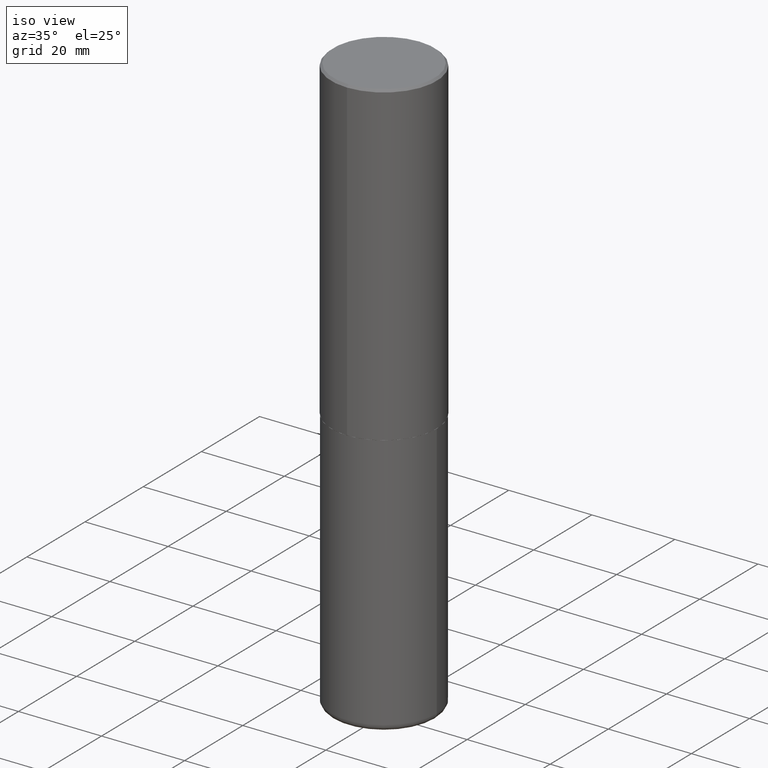
[diagram: clean part render]
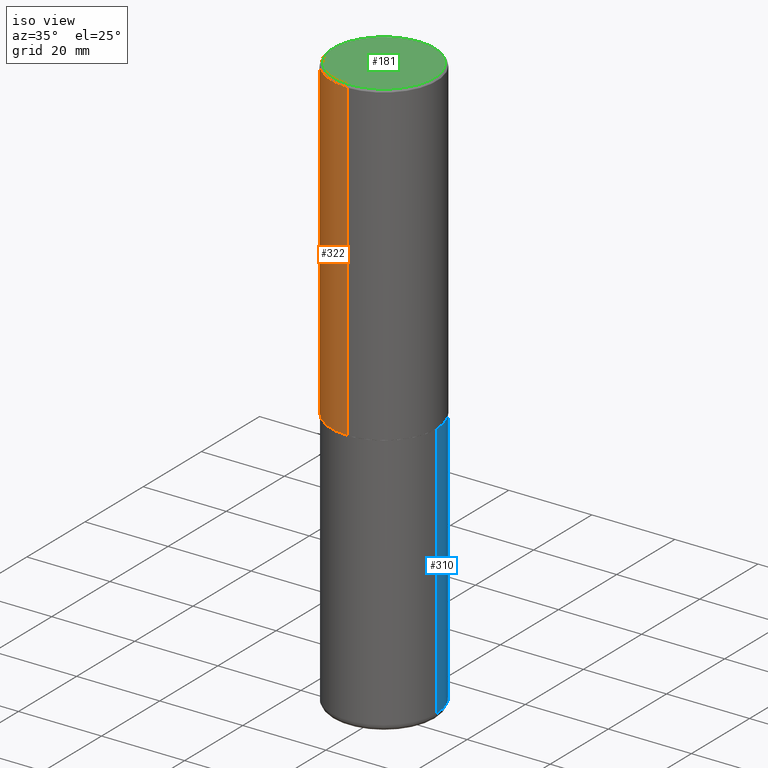
[diagram: same view with three faces highlighted in distinct colors, each labeled with its STEP entity id]
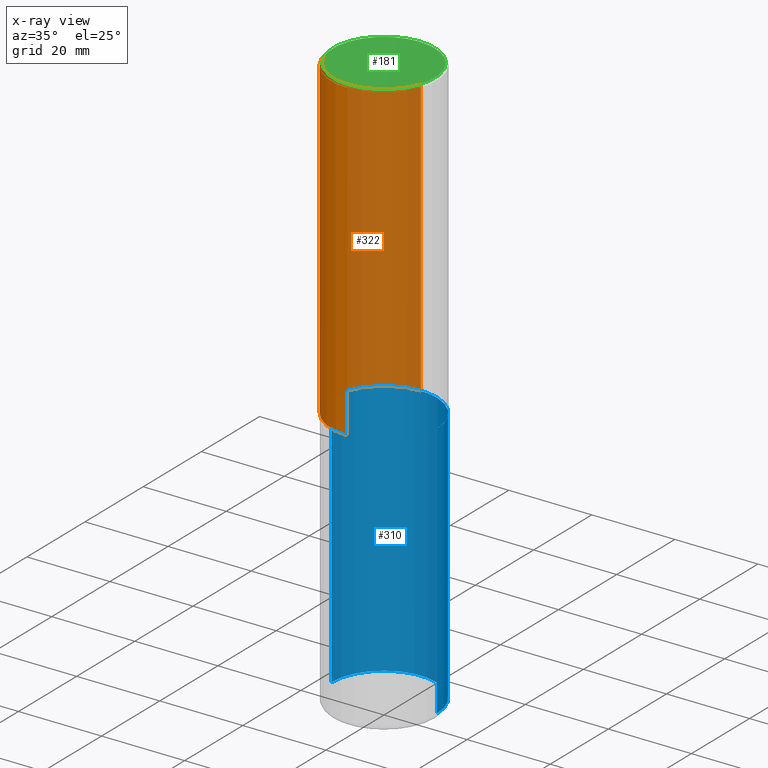
[diagram: x-ray of the same camera — body ghosted, the three highlighted faces saturated]
A machine part, iso view with three faces highlighted in distinct colors.
The next image is the same camera in x-ray (body ghosted, the three faces saturated) — at least one of them is partly hidden behind the body in this view.
Their STEP definitions:

[orange] entity #322 — the highlighted cylindrical surface (partial cylindrical patch) has radius 12.7 mm, axis along (-0, 0, 1).
#3 = VERTEX_POINT ( 'NONE', #256 ) ;
#17 = CIRCLE ( 'NONE', #261, 0.5000000000000003331 ) ;
#40 = EDGE_CURVE ( 'NONE', #222, #226, #84, .T. ) ;
#46 = DIRECTION ( 'NONE',  ( -2.446018302604025097E-29, 3.490694428695902798E-15, 1.000000000000000000 ) ) ;
#58 = DIRECTION ( 'NONE',  ( -2.446018302604025378E-29, 3.490694428695902798E-15, 1.000000000000000000 ) ) ;
#80 = CARTESIAN_POINT ( 'NONE',  ( -3.491481338843061963E-15, -0.5000000000000107692, -2.998999999999998778 ) ) ;
#84 = LINE ( 'NONE', #271, #201 ) ;
#101 = VERTEX_POINT ( 'NONE', #80 ) ;
#110 = DIRECTION ( 'NONE',  ( -2.446018302604025378E-29, 3.490694428695902798E-15, 1.000000000000000000 ) ) ;
#118 = CARTESIAN_POINT ( 'NONE',  ( -3.491481338843133750E-15, -0.5000000000000001110, 1.745347214347951794E-15 ) ) ;
#123 = DIRECTION ( 'NONE',  ( -6.982962677686265922E-15, -1.000000000000000000, 3.490694428695902798E-15 ) ) ;
#132 = ORIENTED_EDGE ( 'NONE', *, *, #317, .F. ) ;
#133 = ORIENTED_EDGE ( 'NONE', *, *, #40, .F. ) ;
#149 = LINE ( 'NONE', #118, #378 ) ;
#156 = EDGE_CURVE ( 'NONE', #222, #101, #17, .T. ) ;
#159 = ORIENTED_EDGE ( 'NONE', *, *, #211, .T. ) ;
#178 = AXIS2_PLACEMENT_3D ( 'NONE', #414, #58, #123 ) ;
#184 = FACE_OUTER_BOUND ( 'NONE', #225, .T. ) ;
#201 = VECTOR ( 'NONE', #46, 39.37007874015748143 ) ;
#205 = DIRECTION ( 'NONE',  ( -6.982962677686265922E-15, -1.000000000000000000, 3.278217592397113496E-15 ) ) ;
#211 = EDGE_CURVE ( 'NONE', #101, #3, #149, .T. ) ;
#217 = CYLINDRICAL_SURFACE ( 'NONE', #178, 0.5000000000000001110 ) ;
#222 = VERTEX_POINT ( 'NONE', #274 ) ;
#225 = EDGE_LOOP ( 'NONE', ( #133, #386, #159, #132 ) ) ;
#226 = VERTEX_POINT ( 'NONE', #315 ) ;
#256 = CARTESIAN_POINT ( 'NONE',  ( -3.430248998885764992E-15, -0.5000000000000001110, -0.01999999999999835937 ) ) ;
#261 = AXIS2_PLACEMENT_3D ( 'NONE', #365, #110, #205 ) ;
#271 = CARTESIAN_POINT ( 'NONE',  ( 3.552713678800501718E-15, 0.5000000000000001110, -1.745347214347951794E-15 ) ) ;
#274 = CARTESIAN_POINT ( 'NONE',  ( 3.552713678800539584E-15, 0.4999999999999898970, -2.999000000000001886 ) ) ;
#309 = AXIS2_PLACEMENT_3D ( 'NONE', #313, #372, #342 ) ;
#313 = CARTESIAN_POINT ( 'NONE',  ( 4.892036605208077240E-31, -6.981388857391842821E-17, -0.02000000000000010797 ) ) ;
#315 = CARTESIAN_POINT ( 'NONE',  ( 3.491481338843133355E-15, 0.4999999999999999445, -0.02000000000000185310 ) ) ;
#317 = EDGE_CURVE ( 'NONE', #226, #3, #370, .T. ) ;
#322 = ADVANCED_FACE ( 'NONE', ( #184 ), #217, .T. ) ;
#342 = DIRECTION ( 'NONE',  ( -6.982962677686265922E-15, -1.000000000000000000, 3.491643216902136408E-15 ) ) ;
#343 = DIRECTION ( 'NONE',  ( -2.446018302604025097E-29, 3.490694428695902798E-15, 1.000000000000000000 ) ) ;
#365 = CARTESIAN_POINT ( 'NONE',  ( 7.335608889509473609E-29, -1.046859259165901344E-14, -2.999000000000000554 ) ) ;
#370 = CIRCLE ( 'NONE', #309, 0.5000000000000000000 ) ;
#372 = DIRECTION ( 'NONE',  ( -2.446018302604025378E-29, 3.490694428695902798E-15, 1.000000000000000000 ) ) ;
#378 = VECTOR ( 'NONE', #343, 39.37007874015748143 ) ;
#386 = ORIENTED_EDGE ( 'NONE', *, *, #156, .T. ) ;
#414 = CARTESIAN_POINT ( 'NONE',  ( 0.000000000000000000, 0.000000000000000000, 0.000000000000000000 ) ) ;

[blue] entity #310 — the highlighted cylindrical surface (partial cylindrical patch) has radius 12.7 mm, axis along (-0, 0, 1).
#1 = DIRECTION ( 'NONE',  ( 1.000000000000000000, -6.982962677686269077E-15, 0.000000000000000000 ) ) ;
#6 = CIRCLE ( 'NONE', #292, 0.5000000000000001110 ) ;
#8 = ORIENTED_EDGE ( 'NONE', *, *, #366, .F. ) ;
#22 = DIRECTION ( 'NONE',  ( -2.445468806185136877E-29, 3.491481338843145188E-15, 1.000000000000000000 ) ) ;
#31 = CARTESIAN_POINT ( 'NONE',  ( -0.5000000000000002220, -1.544094480450621205E-14, -5.439999999999999503 ) ) ;
#61 = LINE ( 'NONE', #348, #68 ) ;
#63 = DIRECTION ( 'NONE',  ( -2.445468806185136877E-29, 3.491481338843145188E-15, 1.000000000000000000 ) ) ;
#68 = VECTOR ( 'NONE', #63, 39.37007874015748143 ) ;
#74 = ORIENTED_EDGE ( 'NONE', *, *, #102, .F. ) ;
#77 = LINE ( 'NONE', #232, #106 ) ;
#102 = EDGE_CURVE ( 'NONE', #417, #199, #233, .T. ) ;
#106 = VECTOR ( 'NONE', #22, 39.37007874015748143 ) ;
#108 = DIRECTION ( 'NONE',  ( 1.000000000000000000, -6.982962677686266711E-15, 0.000000000000000000 ) ) ;
#114 = EDGE_CURVE ( 'NONE', #374, #199, #77, .T. ) ;
#125 = CARTESIAN_POINT ( 'NONE',  ( 0.000000000000000000, 0.000000000000000000, 0.000000000000000000 ) ) ;
#147 = DIRECTION ( 'NONE',  ( -2.445468806185136597E-29, 3.491481338843145583E-15, 1.000000000000000000 ) ) ;
#154 = ORIENTED_EDGE ( 'NONE', *, *, #380, .T. ) ;
#163 = AXIS2_PLACEMENT_3D ( 'NONE', #327, #147, #108 ) ;
#176 = CARTESIAN_POINT ( 'NONE',  ( 0.5000000000000002220, -2.248513982214985265E-14, -5.439999999999999503 ) ) ;
#180 = CYLINDRICAL_SURFACE ( 'NONE', #324, 0.5000000000000000000 ) ;
#190 = CARTESIAN_POINT ( 'NONE',  ( 0.5000000000000000000, -1.396592535537256813E-14, -2.999999999999999556 ) ) ;
#196 = VERTEX_POINT ( 'NONE', #176 ) ;
#199 = VERTEX_POINT ( 'NONE', #303 ) ;
#215 = DIRECTION ( 'NONE',  ( 1.000000000000000000, -6.982962677686266711E-15, 4.876176775795935793E-29 ) ) ;
#232 = CARTESIAN_POINT ( 'NONE',  ( -0.5000000000000000000, 3.552713678800500929E-15, -2.459467545127452891E-29 ) ) ;
#233 = CIRCLE ( 'NONE', #163, 0.5000000000000000000 ) ;
#251 = FACE_OUTER_BOUND ( 'NONE', #325, .T. ) ;
#276 = CARTESIAN_POINT ( 'NONE',  ( 1.330335030564714425E-28, -1.899365848330671298E-14, -5.439999999999999503 ) ) ;
#291 = ORIENTED_EDGE ( 'NONE', *, *, #114, .T. ) ;
#292 = AXIS2_PLACEMENT_3D ( 'NONE', #276, #351, #1 ) ;
#303 = CARTESIAN_POINT ( 'NONE',  ( -0.5000000000000000000, -1.118133757111757295E-14, -2.999999999999999556 ) ) ;
#310 = ADVANCED_FACE ( 'NONE', ( #251 ), #180, .T. ) ;
#324 = AXIS2_PLACEMENT_3D ( 'NONE', #125, #384, #215 ) ;
#325 = EDGE_LOOP ( 'NONE', ( #154, #291, #74, #8 ) ) ;
#327 = CARTESIAN_POINT ( 'NONE',  ( 7.336406418555408669E-29, -1.047444401652943478E-14, -2.999999999999999556 ) ) ;
#348 = CARTESIAN_POINT ( 'NONE',  ( 0.5000000000000000000, -3.491481338843133355E-15, 2.438088387897967896E-29 ) ) ;
#351 = DIRECTION ( 'NONE',  ( -2.445468806185136597E-29, 3.491481338843145583E-15, 1.000000000000000000 ) ) ;
#366 = EDGE_CURVE ( 'NONE', #196, #417, #61, .T. ) ;
#374 = VERTEX_POINT ( 'NONE', #31 ) ;
#380 = EDGE_CURVE ( 'NONE', #196, #374, #6, .T. ) ;
#384 = DIRECTION ( 'NONE',  ( -2.445468806185136597E-29, 3.491481338843145583E-15, 1.000000000000000000 ) ) ;
#417 = VERTEX_POINT ( 'NONE', #190 ) ;

[green] entity #181 — the highlighted planar face has unit normal (0, -0, -1).
#33 = AXIS2_PLACEMENT_3D ( 'NONE', #153, #187, #185 ) ;
#37 = AXIS2_PLACEMENT_3D ( 'NONE', #48, #407, #337 ) ;
#48 = CARTESIAN_POINT ( 'NONE',  ( 3.351822085289408337E-15, 0.4800000000000000933, -1.729078590335627126E-15 ) ) ;
#51 = DIRECTION ( 'NONE',  ( -2.446018302604025378E-29, 3.490694428695902798E-15, 1.000000000000000000 ) ) ;
#54 = DIRECTION ( 'NONE',  ( -6.982962677686265922E-15, -1.000000000000000000, 3.490694428695902798E-15 ) ) ;
#66 = EDGE_LOOP ( 'NONE', ( #288, #323 ) ) ;
#111 = CIRCLE ( 'NONE', #364, 0.4800000000000000933 ) ;
#116 = FACE_OUTER_BOUND ( 'NONE', #66, .T. ) ;
#131 = VERTEX_POINT ( 'NONE', #293 ) ;
#153 = CARTESIAN_POINT ( 'NONE',  ( 2.619453942708643347E-45, -3.738203133764044518E-31, -1.070905291231867826E-16 ) ) ;
#164 = VERTEX_POINT ( 'NONE', #207 ) ;
#174 = CARTESIAN_POINT ( 'NONE',  ( 2.619453942708643347E-45, -3.738203133764044518E-31, -1.070905291231867826E-16 ) ) ;
#181 = ADVANCED_FACE ( 'NONE', ( #116 ), #238, .F. ) ;
#185 = DIRECTION ( 'NONE',  ( -6.982962677686265922E-15, -1.000000000000000000, 3.490694428695902798E-15 ) ) ;
#187 = DIRECTION ( 'NONE',  ( -2.446018302604025378E-29, 3.490694428695902798E-15, 1.000000000000000000 ) ) ;
#193 = EDGE_CURVE ( 'NONE', #164, #131, #111, .T. ) ;
#207 = CARTESIAN_POINT ( 'NONE',  ( -3.361644018908050055E-15, -0.4800000000000000933, 1.568442796650846842E-15 ) ) ;
#214 = CIRCLE ( 'NONE', #33, 0.4800000000000000933 ) ;
#238 = PLANE ( 'NONE',  #37 ) ;
#283 = EDGE_CURVE ( 'NONE', #131, #164, #214, .T. ) ;
#288 = ORIENTED_EDGE ( 'NONE', *, *, #283, .T. ) ;
#293 = CARTESIAN_POINT ( 'NONE',  ( 3.421651712066271240E-15, 0.4800000000000000933, -1.782623854897220357E-15 ) ) ;
#323 = ORIENTED_EDGE ( 'NONE', *, *, #193, .T. ) ;
#337 = DIRECTION ( 'NONE',  ( 6.982962677686265922E-15, 1.000000000000000000, -3.490694428695902798E-15 ) ) ;
#364 = AXIS2_PLACEMENT_3D ( 'NONE', #174, #51, #54 ) ;
#407 = DIRECTION ( 'NONE',  ( 2.446018302604025097E-29, -3.490694428695902798E-15, -1.000000000000000000 ) ) ;